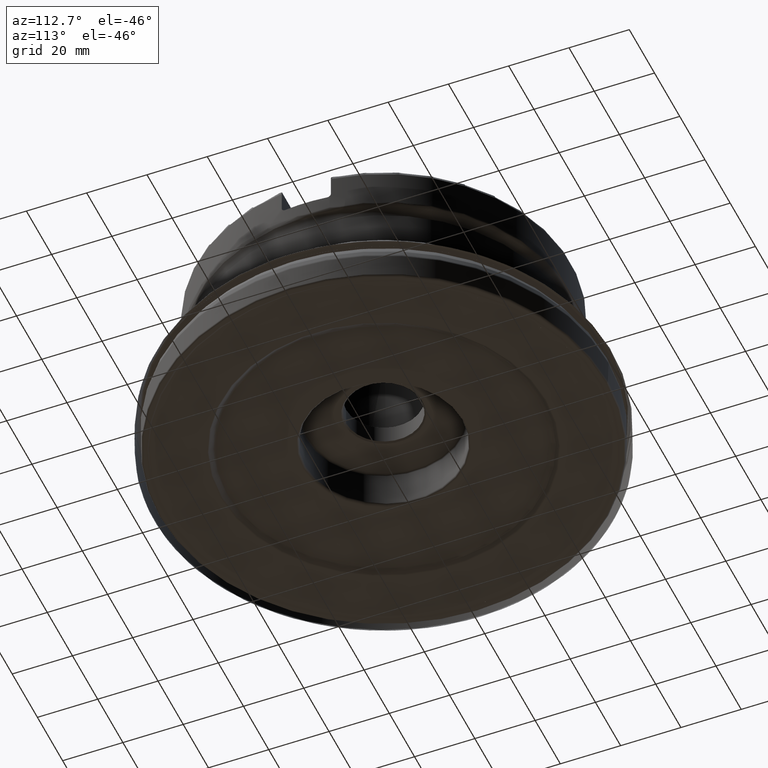
[diagram: clean part render]
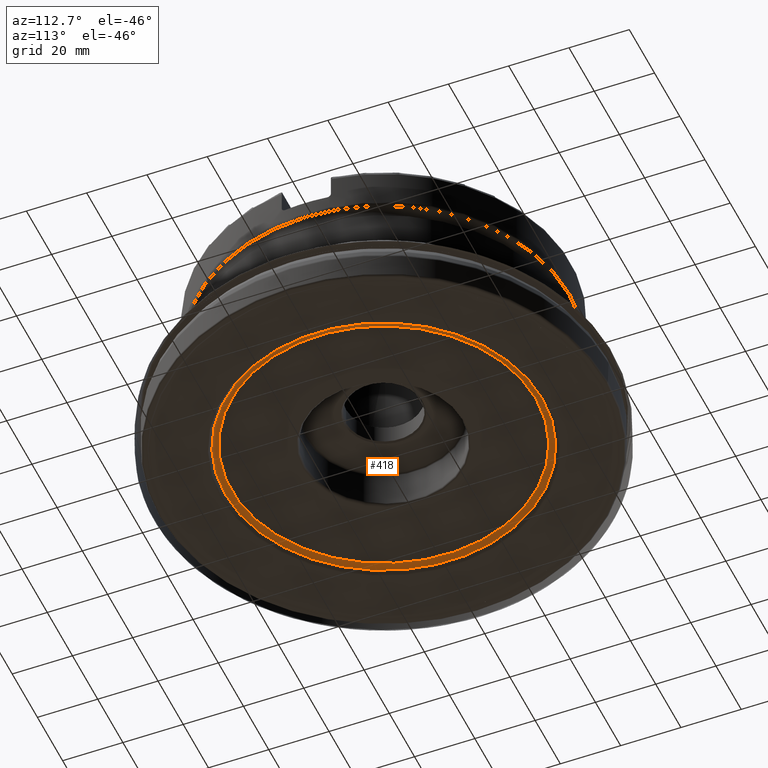
[diagram: same view with one face highlighted and labeled with its STEP entity id]
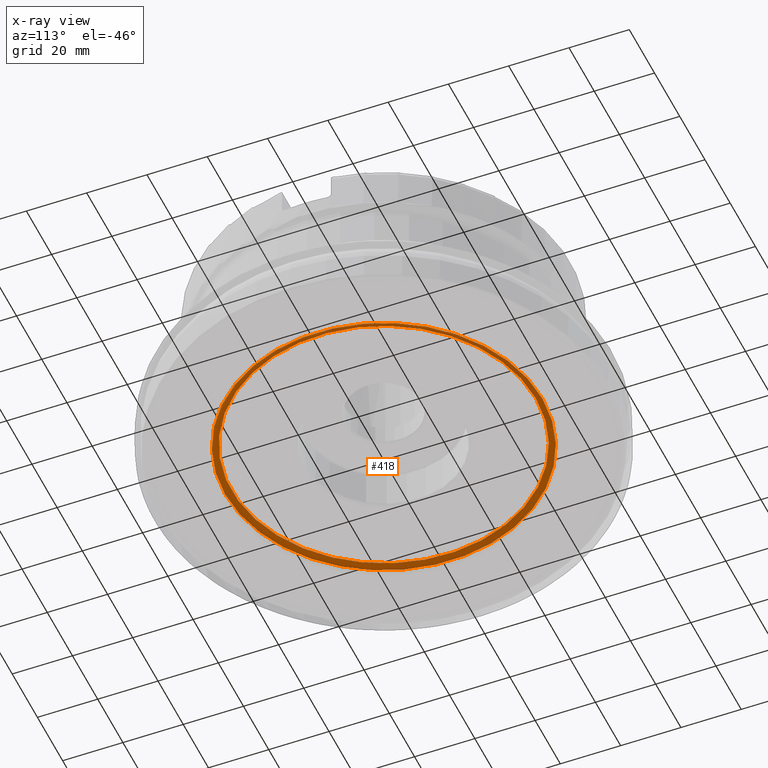
[diagram: x-ray of the same camera — body ghosted, the highlighted face saturated]
A machine part, auxiliary view. The second image highlights one B-rep face of the part: STEP entity #418.
The next image is the same camera in x-ray: the body ghosted, the highlighted face saturated — about 0% of this face is hidden behind the body in this view.
In plain terms, the highlighted toroidal blend (fillet) surface has major radius 50.5268 mm and minor (blend) radius 3 mm.
Its self-contained STEP definition (entity closure, byte-faithful):
#317=FACE_BOUND('',#565,.T.);
#318=FACE_BOUND('',#566,.T.);
#418=ADVANCED_FACE('',(#317,#318),#456,.F.);
#456=TOROIDAL_SURFACE('',#1300,50.5267834799738,3.);
#565=EDGE_LOOP('',(#805));
#566=EDGE_LOOP('',(#806));
#805=ORIENTED_EDGE('',*,*,#982,.F.);
#806=ORIENTED_EDGE('',*,*,#985,.F.);
#880=VERTEX_POINT('',#2048);
#883=VERTEX_POINT('',#2055);
#982=EDGE_CURVE('',#880,#880,#1082,.T.);
#985=EDGE_CURVE('',#883,#883,#1085,.T.);
#1082=CIRCLE('',#1217,50.5267834799738);
#1085=CIRCLE('',#1221,52.6481038235334);
#1217=AXIS2_PLACEMENT_3D('',#2047,#1364,#1365);
#1221=AXIS2_PLACEMENT_3D('',#2054,#1372,#1373);
#1300=AXIS2_PLACEMENT_3D('',#2320,#1546,#1547);
#1364=DIRECTION('',(0.,-1.17145536458252E-15,-1.));
#1365=DIRECTION('',(0.,1.,-1.16731353395152E-15));
#1372=DIRECTION('',(0.,1.17145536458252E-15,1.));
#1373=DIRECTION('',(0.,1.,-1.16970372957002E-15));
#1546=DIRECTION('',(0.,-1.17145536458252E-15,-1.));
#1547=DIRECTION('',(0.,1.,-1.17075754408273E-15));
#2047=CARTESIAN_POINT('',(0.,4.10009377603884E-15,3.5));
#2048=CARTESIAN_POINT('',(0.,50.5267834799738,3.49999999999994));
#2054=CARTESIAN_POINT('',(0.,3.07075977875226E-15,2.62132034355965));
#2055=CARTESIAN_POINT('',(0.,52.6481038235334,2.62132034355959));
#2320=CARTESIAN_POINT('',(0.,5.85727682291264E-16,0.500000000000001));